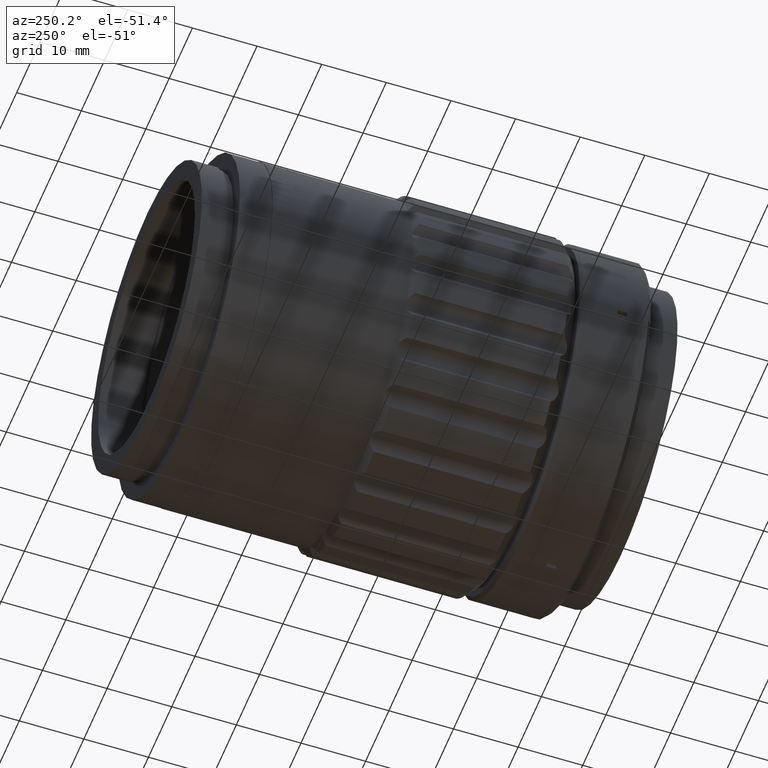
[diagram: clean part render]
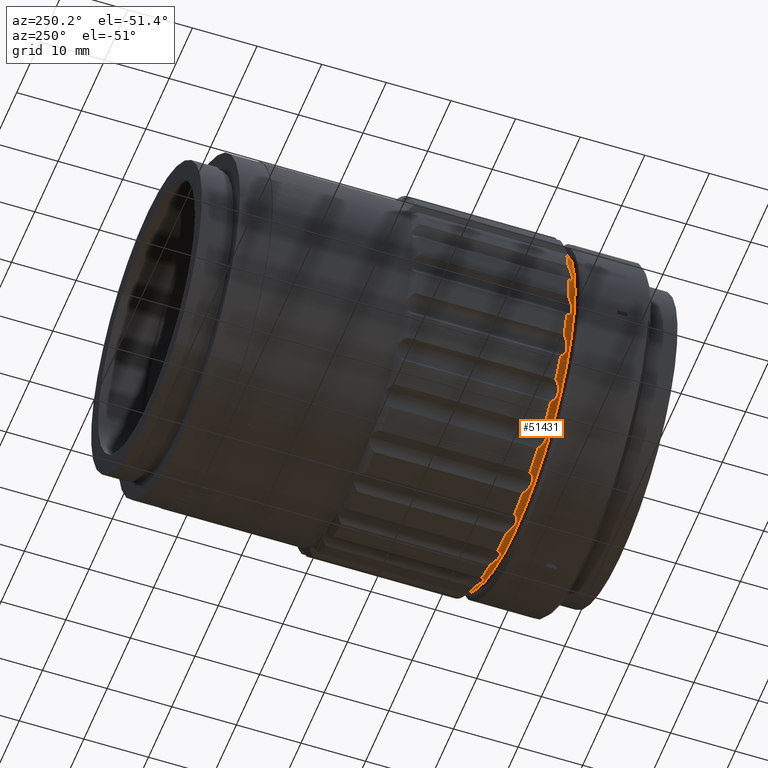
[diagram: same view with one face highlighted and labeled with its STEP entity id]
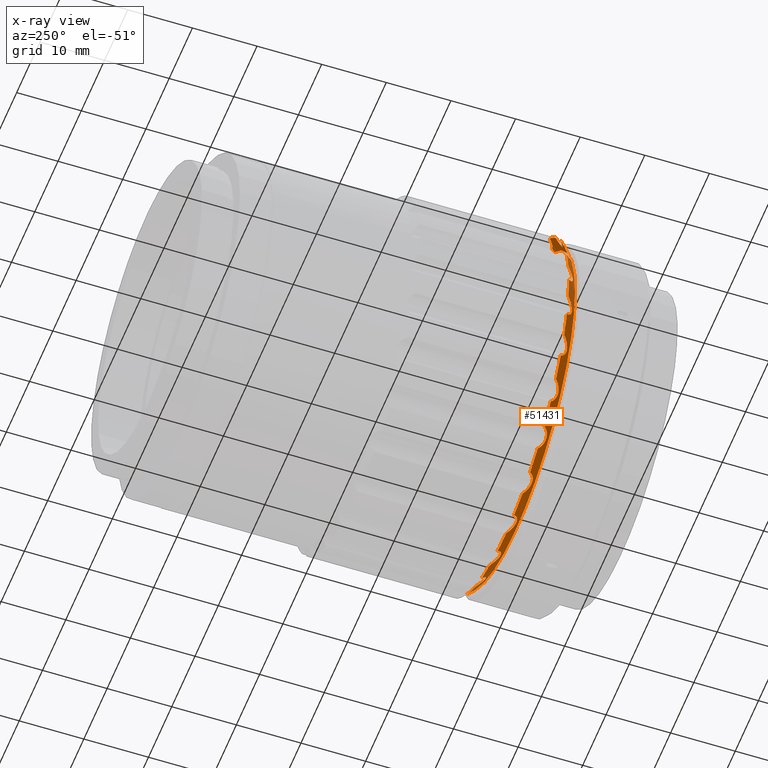
[diagram: x-ray of the same camera — body ghosted, the highlighted face saturated]
A machine part, auxiliary view. The second image highlights one B-rep face of the part: STEP entity #51431.
The next image is the same camera in x-ray: the body ghosted, the highlighted face saturated — about 1% of this face is hidden behind the body in this view.
In plain terms, the highlighted conical surface has half-angle 45 deg.
Its self-contained STEP definition (entity closure, byte-faithful):
#68 = VERTEX_POINT ( 'NONE', #10202 ) ;
#84 = CARTESIAN_POINT ( 'NONE',  ( 20.29177065929341600, -27.34280492395363600, 17.99553708797273900 ) ) ;
#85 = ORIENTED_EDGE ( 'NONE', *, *, #19876, .F. ) ;
#781 = DIRECTION ( 'NONE',  ( 0.0000000000000000000, 0.0000000000000000000, 1.000000000000000000 ) ) ;
#817 = CARTESIAN_POINT ( 'NONE',  ( 5.496128974197956700, -27.46488145372640200, 26.43456949145856400 ) ) ;
#994 = B_SPLINE_CURVE_WITH_KNOTS ( 'NONE', 3,
 ( #76014, #15678, #16257, #15131, #36127, #49241, #62928, #81594, #22678, #9551, #22103, #15971, #8991, #82735 ),
 .UNSPECIFIED., .F., .F.,
 ( 4, 2, 2, 2, 2, 2, 4 ),
 ( 2.979895395335681900E-007, 0.0005735843058146334100, 0.001146870622089733400, 0.001433513780227278200, 0.001720156938364823400, 0.002006800096502368200, 0.002293443254639913400 ),
 .UNSPECIFIED. ) ;
#1081 = CARTESIAN_POINT ( 'NONE',  ( 17.97463840854025800, -27.69496217823254400, -19.83771845072895700 ) ) ;
#1366 = CARTESIAN_POINT ( 'NONE',  ( 18.42558895472554800, -28.21457821189759200, -18.69751705756829100 ) ) ;
#1429 = VERTEX_POINT ( 'NONE', #45675 ) ;
#1537 = CARTESIAN_POINT ( 'NONE',  ( 12.15061308000440700, -27.46505317721099700, -24.11114494454793800 ) ) ;
#1595 = EDGE_CURVE ( 'NONE', #82577, #78057, #76511, .T. ) ;
#2214 = CARTESIAN_POINT ( 'NONE',  ( 18.17598315811139300, -28.09950435885614800, -19.09865240405550700 ) ) ;
#2243 = VERTEX_POINT ( 'NONE', #79891 ) ;
#2279 = CARTESIAN_POINT ( 'NONE',  ( 22.73316684934169300, -28.21457821189759200, -13.12499999999982200 ) ) ;
#2628 = CARTESIAN_POINT ( 'NONE',  ( 5.396722380791890000, -27.21457821189765600, -26.71025809580768500 ) ) ;
#2992 = B_SPLINE_CURVE_WITH_KNOTS ( 'NONE', 3,
 ( #35799, #62893, #43103, #56488, #63169, #22922, #69291, #23229, #29373, #29957, #76572, #43404 ),
 .UNSPECIFIED., .F., .F.,
 ( 4, 2, 2, 2, 2, 4 ),
 ( 0.002293443254639917300, 0.002866010891116032100, 0.003152294709354088400, 0.003438578527592144300, 0.004011146164068256500, 0.004583713800544368300 ),
 .UNSPECIFIED. ) ;
#3066 = B_SPLINE_CURVE_WITH_KNOTS ( 'NONE', 3,
 ( #70979, #84691, #77414, #31658, #77977, #44784, #65137, #45067, #57334, #84138, #11513, #24352 ),
 .UNSPECIFIED., .F., .F.,
 ( 4, 2, 2, 2, 2, 4 ),
 ( 0.002293443254639916400, 0.002866010891116025200, 0.003152294709354081000, 0.003438578527592136900, 0.004011146164068253100, 0.004583713800544370100 ),
 .UNSPECIFIED. ) ;
#3070 = CARTESIAN_POINT ( 'NONE',  ( 27.19690265486727700, -27.21457821189765600, -1.700289969879626300 ) ) ;
#3079 = CARTESIAN_POINT ( 'NONE',  ( 22.70306361842767400, -27.21457821189765600, -15.07094563514930000 ) ) ;
#3089 = CARTESIAN_POINT ( 'NONE',  ( 25.48595755899750200, -27.69403601927517800, 8.193788467767813400 ) ) ;
#3376 = CARTESIAN_POINT ( 'NONE',  ( 13.12499999999974200, -28.21457821189758900, 22.73316684934174200 ) ) ;
#3632 = CIRCLE ( 'NONE', #15533, 27.25000000000000000 ) ;
#4050 = CARTESIAN_POINT ( 'NONE',  ( 22.49960830672927200, -28.09926723534072600, 13.74427288286548800 ) ) ;
#4256 = CARTESIAN_POINT ( 'NONE',  ( 23.22371866839297600, -28.06476916104587400, -12.55448674485722000 ) ) ;
#4336 = CARTESIAN_POINT ( 'NONE',  ( 17.99091246640373100, -27.80261297679606600, 19.67757964108798400 ) ) ;
#4344 = CARTESIAN_POINT ( 'NONE',  ( 22.57841341308863300, -27.46488145372640900, 14.80571327722609400 ) ) ;
#4705 = CARTESIAN_POINT ( 'NONE',  ( 25.35555294008817700, -28.21457821189758900, -6.793999933940936500 ) ) ;
#4797 = VERTEX_POINT ( 'NONE', #79356 ) ;
#4816 = CARTESIAN_POINT ( 'NONE',  ( 14.94273114514007800, -27.34283140253415200, -22.63423652695932700 ) ) ;
#4913 = CARTESIAN_POINT ( 'NONE',  ( 3.214687295059312000E-015, -28.21457821189758900, -26.25000000000006800 ) ) ;
#5098 = CARTESIAN_POINT ( 'NONE',  ( 23.66347315926447700, -27.80261297679608000, -12.28495461717019500 ) ) ;
#5170 = CARTESIAN_POINT ( 'NONE',  ( 18.56155300614669600, -28.21457821189758900, 18.56155300614714700 ) ) ;
#5191 = B_SPLINE_CURVE_WITH_KNOTS ( 'NONE', 3,
 ( #16873, #44325, #30615, #50716, #4336, #52717, #11605, #39319, #12176, #24727, #6057, #85936, #38729, #5170 ),
 .UNSPECIFIED., .F., .F.,
 ( 4, 2, 2, 2, 2, 2, 4 ),
 ( 2.979895395330392700E-007, 0.0005735843058146303800, 0.001146870622089727700, 0.001433513780227274900, 0.001720156938364822100, 0.002006800096502369500, 0.002293443254639916400 ),
 .UNSPECIFIED. ) ;
#5319 = VERTEX_POINT ( 'NONE', #37632 ) ;
#5404 = CARTESIAN_POINT ( 'NONE',  ( 18.02882772684167600, -27.21457821189765600, -20.43340086221245500 ) ) ;
#5472 = CARTESIAN_POINT ( 'NONE',  ( 26.25711993987787800, -28.20691269605203300, 0.1939677701091092100 ) ) ;
#5670 = CARTESIAN_POINT ( 'NONE',  ( 13.83508696474259900, -28.06476916104587400, -22.48436378671787800 ) ) ;
#5927 = CARTESIAN_POINT ( 'NONE',  ( 19.43000910378004800, -27.94445593749854600, 18.04983398450367800 ) ) ;
#6019 = VERTEX_POINT ( 'NONE', #5404 ) ;
#6057 = CARTESIAN_POINT ( 'NONE',  ( 18.31483266324946200, -28.17713089429709700, 18.85751212869132900 ) ) ;
#6265 = CARTESIAN_POINT ( 'NONE',  ( 25.85179847188828000, -27.94445593749853900, 5.916610212781822800 ) ) ;
#6364 = CARTESIAN_POINT ( 'NONE',  ( 14.34841600653548200, -27.80398875942939800, 22.47063614641592400 ) ) ;
#6385 = EDGE_CURVE ( 'NONE', #36840, #35948, #42842, .T. ) ;
#6961 = EDGE_CURVE ( 'NONE', #68, #6019, #23582, .T. ) ;
#7249 = CARTESIAN_POINT ( 'NONE',  ( 5.741797412623757400, -27.80261297679608000, 26.03674008737554900 ) ) ;
#7326 = CIRCLE ( 'NONE', #61600, 27.25000000000000000 ) ;
#7836 = ORIENTED_EDGE ( 'NONE', *, *, #21660, .F. ) ;
#8282 = CARTESIAN_POINT ( 'NONE',  ( 8.575398443852604300, -27.34283140253415600, -25.73045702593426400 ) ) ;
#8306 = VERTEX_POINT ( 'NONE', #18603 ) ;
#8568 = CARTESIAN_POINT ( 'NONE',  ( 25.29891584729710600, -28.06509218753952000, -7.543477619176629300 ) ) ;
#8715 = EDGE_CURVE ( 'NONE', #17019, #28476, #72969, .T. ) ;
#8840 = ORIENTED_EDGE ( 'NONE', *, *, #49540, .F. ) ;
#8991 = CARTESIAN_POINT ( 'NONE',  ( 0.09626177787805270700, -28.21457821189759200, -26.25000000000007500 ) ) ;
#9032 = CARTESIAN_POINT ( 'NONE',  ( 15.07094563514922000, -27.21457821189765600, 22.70306361842772700 ) ) ;
#9489 = CARTESIAN_POINT ( 'NONE',  ( 26.63434974526077800, -27.80398875942940500, -1.190774692519094300 ) ) ;
#9491 = CARTESIAN_POINT ( 'NONE',  ( 12.40542373931072200, -27.94395996729931000, 23.44042607016186600 ) ) ;
#9551 = CARTESIAN_POINT ( 'NONE',  ( 0.4754242997173781000, -28.15530689563528100, -26.30512339967832200 ) ) ;
#9613 = EDGE_CURVE ( 'NONE', #51441, #34334, #22855, .T. ) ;
#9909 = CARTESIAN_POINT ( 'NONE',  ( 22.73316684934141900, -28.21457821189758900, 13.12500000000030000 ) ) ;
#10182 = CARTESIAN_POINT ( 'NONE',  ( 22.47081936244052600, -27.80261297679607000, 14.35069158910920200 ) ) ;
#10188 = ORIENTED_EDGE ( 'NONE', *, *, #8715, .F. ) ;
#10202 = CARTESIAN_POINT ( 'NONE',  ( 18.56155300614708300, -28.21457821189759200, -18.56155300614676000 ) ) ;
#10455 = DIRECTION ( 'NONE',  ( 0.0000000000000000000, 1.000000000000000000, 0.0000000000000000000 ) ) ;
#10825 = CARTESIAN_POINT ( 'NONE',  ( 0.0000000000000000000, -27.21457821189765600, 0.0000000000000000000 ) ) ;
#10828 = VERTEX_POINT ( 'NONE', #26426 ) ;
#11252 = CARTESIAN_POINT ( 'NONE',  ( 23.15269362647170600, -28.09926723534074700, -12.61309592739423400 ) ) ;
#11378 = DIRECTION ( 'NONE',  ( 0.0000000000000000000, 0.0000000000000000000, 1.000000000000000000 ) ) ;
#11404 = CARTESIAN_POINT ( 'NONE',  ( 26.03674008737553100, -27.80261297679607700, -5.741797412623846200 ) ) ;
#11461 = EDGE_CURVE ( 'NONE', #6019, #2243, #23806, .T. ) ;
#11513 = CARTESIAN_POINT ( 'NONE',  ( 1.623682329469386700, -27.34280492395364700, 27.07321494146812300 ) ) ;
#11605 = CARTESIAN_POINT ( 'NONE',  ( 18.07461255162277800, -27.98722358619830800, 19.34851460391178400 ) ) ;
#11759 = B_SPLINE_CURVE_WITH_KNOTS ( 'NONE', 3,
 ( #79248, #39359, #817, #46352, #7249, #60601, #73122, #79545, #20916, #20057, #20635, #47502, #53910, #67308 ),
 .UNSPECIFIED., .F., .F.,
 ( 4, 2, 2, 2, 2, 2, 4 ),
 ( 2.979895395331365200E-007, 0.0005735843058146333000, 0.001146870622089733600, 0.001433513780227279500, 0.001720156938364825500, 0.002006800096502371200, 0.002293443254639917300 ),
 .UNSPECIFIED. ) ;
#12123 = VERTEX_POINT ( 'NONE', #46863 ) ;
#12176 = CARTESIAN_POINT ( 'NONE',  ( 18.17567316168613400, -28.09926723534073600, 19.09927527825271200 ) ) ;
#12623 = CARTESIAN_POINT ( 'NONE',  ( 18.56155300614669600, -28.21457821189758900, 18.56155300614714700 ) ) ;
#12666 = CARTESIAN_POINT ( 'NONE',  ( 14.80571327722601900, -27.46488145372640600, -22.57841341308868600 ) ) ;
#12743 = CARTESIAN_POINT ( 'NONE',  ( 19.83900774582160100, -27.69403601927518500, -17.97459245198000800 ) ) ;
#12776 = CARTESIAN_POINT ( 'NONE',  ( 13.12499999999974200, -28.21457821189758900, 22.73316684934174200 ) ) ;
#14054 = CARTESIAN_POINT ( 'NONE',  ( 6.428378196693362400, -28.18336728292411300, -25.48350592457158800 ) ) ;
#14217 = CARTESIAN_POINT ( 'NONE',  ( 18.07484719242459500, -27.98758608644782000, -19.34779952012606000 ) ) ;
#14708 = B_SPLINE_CURVE_WITH_KNOTS ( 'NONE', 3,
 ( #63807, #64673, #4344, #51287, #10182, #43468, #64115, #16881, #4050, #84237, #36731, #83962, #57723, #30317 ),
 .UNSPECIFIED., .F., .F.,
 ( 4, 2, 2, 2, 2, 2, 4 ),
 ( 2.979895395317101100E-007, 0.0005735843058146297300, 0.001146870622089727700, 0.001433513780227274300, 0.001720156938364820800, 0.002006800096502367300, 0.002293443254639913800 ),
 .UNSPECIFIED. ) ;
#14906 = CARTESIAN_POINT ( 'NONE',  ( 6.608269585698109500, -28.21457821189758200, -25.40531923690980100 ) ) ;
#15013 = EDGE_CURVE ( 'NONE', #69228, #42284, #7326, .T. ) ;
#15124 = ORIENTED_EDGE ( 'NONE', *, *, #36326, .F. ) ;
#15131 = CARTESIAN_POINT ( 'NONE',  ( 1.318340697223064700, -27.69403601927518500, -26.73825312094251700 ) ) ;
#15354 = CARTESIAN_POINT ( 'NONE',  ( 26.25000000000006800, -28.21457821189758900, 2.749541448812025800E-013 ) ) ;
#15498 = CARTESIAN_POINT ( 'NONE',  ( 12.80495319060172900, -28.18336728292409500, -22.95138981050813200 ) ) ;
#15533 = AXIS2_PLACEMENT_3D ( 'NONE', #18619, #78689, #39080 ) ;
#15617 = CARTESIAN_POINT ( 'NONE',  ( 26.27896322336021800, -28.18336728292411300, -0.3862801479223057500 ) ) ;
#15678 = CARTESIAN_POINT ( 'NONE',  ( 1.623666510132358600, -27.34283140253416300, -27.07318940018251000 ) ) ;
#15971 = CARTESIAN_POINT ( 'NONE',  ( 0.1939677701088359000, -28.20691269605202600, -26.25711993987788900 ) ) ;
#16074 = VERTEX_POINT ( 'NONE', #78745 ) ;
#16087 = CARTESIAN_POINT ( 'NONE',  ( 0.0000000000000000000, -27.21457821189765600, 0.0000000000000000000 ) ) ;
#16206 = DIRECTION ( 'NONE',  ( 0.0000000000000000000, 1.000000000000000000, 0.0000000000000000000 ) ) ;
#16257 = CARTESIAN_POINT ( 'NONE',  ( 1.532917112681723400, -27.46488145372640900, -26.95633623149513600 ) ) ;
#16493 = CARTESIAN_POINT ( 'NONE',  ( 12.55448674485714000, -28.06476916104587000, 23.22371866839302600 ) ) ;
#16855 = ORIENTED_EDGE ( 'NONE', *, *, #23459, .F. ) ;
#16873 = CARTESIAN_POINT ( 'NONE',  ( 18.02882772684125000, -27.21457821189765600, 20.43340086221282800 ) ) ;
#16876 = DIRECTION ( 'NONE',  ( 0.0000000000000000000, 1.000000000000000000, 0.0000000000000000000 ) ) ;
#16881 = CARTESIAN_POINT ( 'NONE',  ( 22.48436378671781500, -28.06476916104585900, 13.83508696474267600 ) ) ;
#17019 = VERTEX_POINT ( 'NONE', #9032 ) ;
#17102 = CARTESIAN_POINT ( 'NONE',  ( 25.31222772085741100, -28.20691269605202900, 6.983201188597655900 ) ) ;
#17266 = ORIENTED_EDGE ( 'NONE', *, *, #86395, .F. ) ;
#17660 = CARTESIAN_POINT ( 'NONE',  ( 22.95518548577694400, -28.17713089429709700, -12.81008659143822600 ) ) ;
#18212 = CARTESIAN_POINT ( 'NONE',  ( 13.47473048354753400, -28.17713089429708600, -22.57145315575239400 ) ) ;
#18222 = CARTESIAN_POINT ( 'NONE',  ( 25.35555294008803500, -28.21457821189758500, 6.793999933941468500 ) ) ;
#18286 = CARTESIAN_POINT ( 'NONE',  ( 0.0000000000000000000, -28.71457821189759200, 0.0000000000000000000 ) ) ;
#18603 = CARTESIAN_POINT ( 'NONE',  ( 3.245314017740490500E-015, -28.71457821189759200, -25.75000000000007100 ) ) ;
#18619 = CARTESIAN_POINT ( 'NONE',  ( 0.0000000000000000000, -27.21457821189765600, 0.0000000000000000000 ) ) ;
#18675 = ORIENTED_EDGE ( 'NONE', *, *, #1595, .F. ) ;
#18824 = VERTEX_POINT ( 'NONE', #22955 ) ;
#19140 = CARTESIAN_POINT ( 'NONE',  ( 19.18304937321613900, -28.06476916104587000, -18.13744367214442800 ) ) ;
#19155 = CARTESIAN_POINT ( 'NONE',  ( 26.63564620627934000, -27.80261297679608000, 1.192653796823947200 ) ) ;
#19169 = EDGE_CURVE ( 'NONE', #78057, #43040, #68611, .T. ) ;
#19178 = CARTESIAN_POINT ( 'NONE',  ( 14.94275761573015200, -27.34280492395364300, 22.63425073669332500 ) ) ;
#19432 = CARTESIAN_POINT ( 'NONE',  ( 18.70374348949192000, -28.20691269605203300, -18.42943163834040700 ) ) ;
#19717 = CARTESIAN_POINT ( 'NONE',  ( 19.09927527825264400, -28.09926723534073600, -18.17567316168619800 ) ) ;
#19856 = VERTEX_POINT ( 'NONE', #64020 ) ;
#19876 = EDGE_CURVE ( 'NONE', #51373, #69228, #59045, .T. ) ;
#19923 = AXIS2_PLACEMENT_3D ( 'NONE', #74022, #27428, #34131 ) ;
#20057 = CARTESIAN_POINT ( 'NONE',  ( 6.349042310065970100, -28.15530689563527700, 25.53184691874165000 ) ) ;
#20635 = CARTESIAN_POINT ( 'NONE',  ( 6.432354288089341800, -28.17713089429709300, 25.48850088724460200 ) ) ;
#20916 = CARTESIAN_POINT ( 'NONE',  ( 6.190957049776832500, -28.09926723534073300, 25.62829416568202500 ) ) ;
#21023 = CARTESIAN_POINT ( 'NONE',  ( 6.793999933941379700, -28.21457821189758900, -25.35555294008806000 ) ) ;
#21065 = CARTESIAN_POINT ( 'NONE',  ( 12.40594440328848700, -27.94445593749853500, -23.43958839450117900 ) ) ;
#21105 = CARTESIAN_POINT ( 'NONE',  ( 8.193788467767724600, -27.69403601927517800, -25.48595755899753000 ) ) ;
#21175 = DIRECTION ( 'NONE',  ( 0.0000000000000000000, 0.0000000000000000000, 1.000000000000000000 ) ) ;
#21185 = CARTESIAN_POINT ( 'NONE',  ( 18.13776500237566600, -28.06509218753952000, -19.18230117473488900 ) ) ;
#21267 = CARTESIAN_POINT ( 'NONE',  ( 25.83012324300438300, -27.21457821189765600, -8.681430368965969500 ) ) ;
#21484 = B_SPLINE_CURVE_WITH_KNOTS ( 'NONE', 3,
 ( #76553, #50059, #50644, #56470, #82978, #36644, #49481, #43087, #76852, #83577, #70150, #3079 ),
 .UNSPECIFIED., .F., .F.,
 ( 4, 2, 2, 2, 2, 4 ),
 ( 0.002293443254639917300, 0.002866010891116029500, 0.003152294709354087600, 0.003438578527592144700, 0.004011146164068255700, 0.004583713800544366600 ),
 .UNSPECIFIED. ) ;
#21571 = VERTEX_POINT ( 'NONE', #2279 ) ;
#21660 = EDGE_CURVE ( 'NONE', #43040, #71437, #994, .T. ) ;
#21677 = CARTESIAN_POINT ( 'NONE',  ( 6.793999933941379700, -28.21457821189758900, -25.35555294008806000 ) ) ;
#21735 = AXIS2_PLACEMENT_3D ( 'NONE', #44997, #38860, #58952 ) ;
#22103 = CARTESIAN_POINT ( 'NONE',  ( 0.3837323300243211100, -28.17713089429710000, -26.28481707498578900 ) ) ;
#22280 = CIRCLE ( 'NONE', #19923, 27.25000000000000000 ) ;
#22305 = AXIS2_PLACEMENT_3D ( 'NONE', #48431, #35303, #42029 ) ;
#22326 = CARTESIAN_POINT ( 'NONE',  ( 26.50225120553317400, -27.94445593749853900, -0.9759311860653224800 ) ) ;
#22450 = CARTESIAN_POINT ( 'NONE',  ( 5.647634260270850200, -27.69496217823255100, -26.16728733572468700 ) ) ;
#22678 = CARTESIAN_POINT ( 'NONE',  ( 0.6530853197421552200, -28.09926723534074000, -26.35736881025967900 ) ) ;
#22855 = CIRCLE ( 'NONE', #83834, 27.25000000000000000 ) ;
#22922 = CARTESIAN_POINT ( 'NONE',  ( 7.718262295545124600, -27.98758608644783100, 25.32717659822460000 ) ) ;
#22924 = ORIENTED_EDGE ( 'NONE', *, *, #76867, .F. ) ;
#22955 = CARTESIAN_POINT ( 'NONE',  ( 20.43340086221277100, -27.21457821189765600, -18.02882772684132100 ) ) ;
#23002 = VERTEX_POINT ( 'NONE', #21267 ) ;
#23205 = CARTESIAN_POINT ( 'NONE',  ( 12.81008659143814500, -28.17713089429709700, 22.95518548577699700 ) ) ;
#23229 = CARTESIAN_POINT ( 'NONE',  ( 8.043676996790502200, -27.80398875942939800, 25.41861111651303400 ) ) ;
#23233 = CARTESIAN_POINT ( 'NONE',  ( 3.153465507804443500E-015, -28.71457821189759200, -25.75000000000007100 ) ) ;
#23297 = ORIENTED_EDGE ( 'NONE', *, *, #6961, .F. ) ;
#23395 = CARTESIAN_POINT ( 'NONE',  ( 22.82930795209918900, -28.21457821189758200, 12.95847872532815100 ) ) ;
#23459 = EDGE_CURVE ( 'NONE', #4797, #1429, #72442, .T. ) ;
#23515 = CARTESIAN_POINT ( 'NONE',  ( 25.33063855865777100, -28.21457821189759600, 6.886981671278380900 ) ) ;
#23572 = CARTESIAN_POINT ( 'NONE',  ( 0.0000000000000000000, -27.21457821189765600, 0.0000000000000000000 ) ) ;
#23582 = B_SPLINE_CURVE_WITH_KNOTS ( 'NONE', 3,
 ( #28780, #1366, #27934, #2214, #21185, #14217, #61730, #42213, #1081, #60881, #67845, #68136 ),
 .UNSPECIFIED., .F., .F.,
 ( 4, 2, 2, 2, 2, 4 ),
 ( 0.002293443254639912900, 0.002866010891116018200, 0.003152294709354073700, 0.003438578527592129100, 0.004011146164068246100, 0.004583713800544364000 ),
 .UNSPECIFIED. ) ;
#23762 = EDGE_CURVE ( 'NONE', #37376, #23002, #61361, .T. ) ;
#23806 = CIRCLE ( 'NONE', #40312, 27.25000000000000000 ) ;
#23884 = DIRECTION ( 'NONE',  ( 0.0000000000000000000, 0.0000000000000000000, 1.000000000000000000 ) ) ;
#24352 = CARTESIAN_POINT ( 'NONE',  ( 1.700289969879911200, -27.21457821189765600, 27.19690265486725900 ) ) ;
#24651 = CARTESIAN_POINT ( 'NONE',  ( 22.83631678320371700, -28.20691269605203300, -12.96057895350906000 ) ) ;
#24727 = CARTESIAN_POINT ( 'NONE',  ( 18.26435538959021800, -28.15530689563528100, 18.93670688213272200 ) ) ;
#25374 = CARTESIAN_POINT ( 'NONE',  ( 25.83012324300420200, -27.21457821189765600, 8.681430368966511300 ) ) ;
#25873 = CARTESIAN_POINT ( 'NONE',  ( 26.35736881025967200, -28.09926723534074000, 0.6530853197424288900 ) ) ;
#25897 = CARTESIAN_POINT ( 'NONE',  ( 15.07094563514922000, -27.21457821189765600, 22.70306361842772700 ) ) ;
#26210 = ORIENTED_EDGE ( 'NONE', *, *, #54009, .F. ) ;
#26332 = CARTESIAN_POINT ( 'NONE',  ( 18.69751705756823100, -28.21457821189758900, 18.42558895472561900 ) ) ;
#26426 = CARTESIAN_POINT ( 'NONE',  ( 1.055269961422458500E-020, -28.21457821189758900, 26.25000000000006800 ) ) ;
#26454 = CARTESIAN_POINT ( 'NONE',  ( 18.93670688213265100, -28.15530689563527700, -18.26435538959027500 ) ) ;
#26470 = CARTESIAN_POINT ( 'NONE',  ( 26.25000000000007100, -28.21457821189759600, 0.09626177787832455900 ) ) ;
#26777 = CARTESIAN_POINT ( 'NONE',  ( 14.01042454763560300, -27.98758608644783100, 22.46654070602546600 ) ) ;
#27193 = ORIENTED_EDGE ( 'NONE', *, *, #63809, .F. ) ;
#27428 = DIRECTION ( 'NONE',  ( 0.0000000000000000000, 1.000000000000000000, 0.0000000000000000000 ) ) ;
#27562 = CARTESIAN_POINT ( 'NONE',  ( 8.457497431597992900, -27.46488145372640200, -25.64107320480722800 ) ) ;
#27814 = CARTESIAN_POINT ( 'NONE',  ( 12.55499077404280300, -28.06509218753951300, -23.22307913054034500 ) ) ;
#27934 = CARTESIAN_POINT ( 'NONE',  ( 18.30889178575625600, -28.18336728292410600, -18.85517440982354000 ) ) ;
#28476 = VERTEX_POINT ( 'NONE', #65316 ) ;
#28477 = EDGE_CURVE ( 'NONE', #52840, #78821, #22280, .T. ) ;
#28620 = CARTESIAN_POINT ( 'NONE',  ( 5.496167468345633200, -27.46505317721100400, -26.43438767811490600 ) ) ;
#28780 = CARTESIAN_POINT ( 'NONE',  ( 18.56155300614708300, -28.21457821189759200, -18.56155300614676000 ) ) ;
#29175 = CARTESIAN_POINT ( 'NONE',  ( 5.438706943282602100, -27.34280492395364000, -26.57095742270220700 ) ) ;
#29349 = CARTESIAN_POINT ( 'NONE',  ( 26.35714757226545400, -28.09950435885614800, -0.6524256805993125000 ) ) ;
#29373 = CARTESIAN_POINT ( 'NONE',  ( 8.192648927184306400, -27.69496217823255100, 25.48535271099988000 ) ) ;
#29423 = DIRECTION ( 'NONE',  ( 0.0000000000000000000, 0.0000000000000000000, 1.000000000000000000 ) ) ;
#29467 = CARTESIAN_POINT ( 'NONE',  ( 5.743276939199267500, -27.80398875942940500, -26.03500145421310900 ) ) ;
#29767 = CARTESIAN_POINT ( 'NONE',  ( 5.979377078098478300, -27.98758608644784100, -25.79310948796984700 ) ) ;
#29947 = CARTESIAN_POINT ( 'NONE',  ( 25.32733093522229200, -27.98722358619830100, 7.718998896670393100 ) ) ;
#29957 = CARTESIAN_POINT ( 'NONE',  ( 8.457373188016381600, -27.46505317721100400, 25.64093499690671200 ) ) ;
#30116 = CARTESIAN_POINT ( 'NONE',  ( 24.11114494454789200, -27.46505317721099700, 12.15061308000449000 ) ) ;
#30154 = ORIENTED_EDGE ( 'NONE', *, *, #35548, .F. ) ;
#30317 = CARTESIAN_POINT ( 'NONE',  ( 22.73316684934141900, -28.21457821189758900, 13.12500000000030000 ) ) ;
#30415 = CARTESIAN_POINT ( 'NONE',  ( 23.43958839450113600, -27.94445593749854200, 12.40594440328856700 ) ) ;
#30615 = CARTESIAN_POINT ( 'NONE',  ( 17.97707205986043600, -27.46488145372639900, 20.14494423060919800 ) ) ;
#30958 = LINE ( 'NONE', #23233, #33035 ) ;
#30987 = CARTESIAN_POINT ( 'NONE',  ( 0.0000000000000000000, -27.21457821189765600, 0.0000000000000000000 ) ) ;
#31050 = CARTESIAN_POINT ( 'NONE',  ( 13.12500000000022200, -28.21457821189758900, -22.73316684934146900 ) ) ;
#31658 = CARTESIAN_POINT ( 'NONE',  ( 0.6524256805995876100, -28.09950435885614800, 26.35714757226545000 ) ) ;
#31828 = CARTESIAN_POINT ( 'NONE',  ( 26.71025809580777700, -27.21457821189765600, -5.396722380791422000 ) ) ;
#31943 = CARTESIAN_POINT ( 'NONE',  ( 13.29654098636880400, -28.20691269605203300, -22.64234901309466300 ) ) ;
#31956 = CARTESIAN_POINT ( 'NONE',  ( 22.73316684934169300, -28.21457821189759200, -13.12499999999982200 ) ) ;
#32512 = CARTESIAN_POINT ( 'NONE',  ( 26.57095742270219300, -27.34280492395364000, 5.438706943282693600 ) ) ;
#32566 = DIRECTION ( 'NONE',  ( 0.0000000000000000000, -1.000000000000000000, 0.0000000000000000000 ) ) ;
#33035 = VECTOR ( 'NONE', #75702, 1000.000000000000100 ) ;
#33103 = EDGE_CURVE ( 'NONE', #68963, #10828, #50185, .T. ) ;
#33104 = CARTESIAN_POINT ( 'NONE',  ( 25.79310948796982600, -27.98758608644784100, 5.979377078098568000 ) ) ;
#33578 = CIRCLE ( 'NONE', #66537, 27.25000000000000000 ) ;
#33984 = CARTESIAN_POINT ( 'NONE',  ( 25.41861111651300200, -27.80398875942939800, -8.043676996790594600 ) ) ;
#34131 = DIRECTION ( 'NONE',  ( 0.0000000000000000000, 0.0000000000000000000, 1.000000000000000000 ) ) ;
#34334 = VERTEX_POINT ( 'NONE', #25374 ) ;
#34550 = CARTESIAN_POINT ( 'NONE',  ( 7.718998896670303400, -27.98722358619830100, -25.32733093522231700 ) ) ;
#34840 = CARTESIAN_POINT ( 'NONE',  ( 25.34661931656188100, -27.94445593749853900, -7.801964487384656100 ) ) ;
#34926 = B_SPLINE_CURVE_WITH_KNOTS ( 'NONE', 3,
 ( #45088, #37805, #84991, #51202, #5098, #84712, #37518, #4256, #11252, #71843, #17660, #24651, #51773, #31956 ),
 .UNSPECIFIED., .F., .F.,
 ( 4, 2, 2, 2, 2, 2, 4 ),
 ( 2.979895395329111000E-007, 0.0005735843058146299400, 0.001146870622089727100, 0.001433513780227274700, 0.001720156938364822300, 0.002006800096502369900, 0.002293443254639917300 ),
 .UNSPECIFIED. ) ;
#35303 = DIRECTION ( 'NONE',  ( 0.0000000000000000000, 1.000000000000000000, 0.0000000000000000000 ) ) ;
#35548 = EDGE_CURVE ( 'NONE', #34334, #51373, #53815, .T. ) ;
#35776 = CARTESIAN_POINT ( 'NONE',  ( 12.15062295426900000, -27.46488145372640900, 24.11133052577068300 ) ) ;
#35799 = CARTESIAN_POINT ( 'NONE',  ( 6.793999933940849400, -28.21457821189758900, 25.35555294008819900 ) ) ;
#35948 = VERTEX_POINT ( 'NONE', #81174 ) ;
#35951 = DIRECTION ( 'NONE',  ( 0.0000000000000000000, 0.0000000000000000000, 1.000000000000000000 ) ) ;
#36127 = CARTESIAN_POINT ( 'NONE',  ( 1.192653796823668300, -27.80261297679607300, -26.63564620627935400 ) ) ;
#36185 = CARTESIAN_POINT ( 'NONE',  ( 6.116614672562172400, -28.06509218753952000, -25.68124262155232500 ) ) ;
#36326 = EDGE_CURVE ( 'NONE', #19856, #61619, #14708, .T. ) ;
#36442 = CIRCLE ( 'NONE', #52604, 27.25000000000000000 ) ;
#36532 = CARTESIAN_POINT ( 'NONE',  ( 24.25793306616236900, -27.34280492395364300, 12.13045732573795700 ) ) ;
#36644 = CARTESIAN_POINT ( 'NONE',  ( 22.46654070602542000, -27.98758608644783800, -14.01042454763568100 ) ) ;
#36731 = CARTESIAN_POINT ( 'NONE',  ( 22.57145315575235100, -28.17713089429708600, 13.47473048354761200 ) ) ;
#36840 = VERTEX_POINT ( 'NONE', #50040 ) ;
#37108 = ORIENTED_EDGE ( 'NONE', *, *, #49883, .F. ) ;
#37376 = VERTEX_POINT ( 'NONE', #63904 ) ;
#37518 = CARTESIAN_POINT ( 'NONE',  ( 23.36728391745860000, -27.98722358619830400, -12.45097098984443600 ) ) ;
#37632 = CARTESIAN_POINT ( 'NONE',  ( 27.19690265486727700, -27.21457821189765600, -1.700289969879626300 ) ) ;
#37667 = ORIENTED_EDGE ( 'NONE', *, *, #79659, .F. ) ;
#37681 = ORIENTED_EDGE ( 'NONE', *, *, #44406, .F. ) ;
#37789 = EDGE_CURVE ( 'NONE', #16074, #12123, #2992, .T. ) ;
#37805 = CARTESIAN_POINT ( 'NONE',  ( 24.25790303709192100, -27.34283140253415200, -12.13045825504238300 ) ) ;
#38070 = CARTESIAN_POINT ( 'NONE',  ( 14.51084309510950400, -27.69403601927518800, -22.49683610694311800 ) ) ;
#38694 = CARTESIAN_POINT ( 'NONE',  ( 26.71025809580766700, -27.21457821189765600, 5.396722380791983300 ) ) ;
#38729 = CARTESIAN_POINT ( 'NONE',  ( 18.49348565024005700, -28.21457821189759200, 18.62962036205379200 ) ) ;
#38860 = DIRECTION ( 'NONE',  ( 0.0000000000000000000, 1.000000000000000000, 0.0000000000000000000 ) ) ;
#38927 = ORIENTED_EDGE ( 'NONE', *, *, #74317, .F. ) ;
#38938 = EDGE_CURVE ( 'NONE', #60959, #5319, #43218, .T. ) ;
#39033 = CARTESIAN_POINT ( 'NONE',  ( 26.25000000000006800, -28.21457821189758900, 2.749541448812025800E-013 ) ) ;
#39080 = DIRECTION ( 'NONE',  ( 0.0000000000000000000, 0.0000000000000000000, 1.000000000000000000 ) ) ;
#39232 = CARTESIAN_POINT ( 'NONE',  ( 14.35069158910911600, -27.80261297679606600, -22.47081936244057200 ) ) ;
#39287 = DIRECTION ( 'NONE',  ( 0.0000000000000000000, 1.000000000000000000, 0.0000000000000000000 ) ) ;
#39319 = CARTESIAN_POINT ( 'NONE',  ( 18.13744367214437500, -28.06476916104587700, 19.18304937321620000 ) ) ;
#39342 = CARTESIAN_POINT ( 'NONE',  ( 13.74359099961303200, -28.09950435885614400, 22.49974652857760700 ) ) ;
#39359 = CARTESIAN_POINT ( 'NONE',  ( 5.438715613017080800, -27.34283140253414900, 26.57092865736919400 ) ) ;
#39385 = CARTESIAN_POINT ( 'NONE',  ( 13.12499999999974200, -28.21457821189758900, 22.73316684934174200 ) ) ;
#39473 = B_SPLINE_CURVE_WITH_KNOTS ( 'NONE', 3,
 ( #65723, #4816, #12666, #38070, #39232, #51470, #72122, #5670, #58184, #71831, #18212, #31943, #59326, #64574 ),
 .UNSPECIFIED., .F., .F.,
 ( 4, 2, 2, 2, 2, 2, 4 ),
 ( 2.979895395338206000E-007, 0.0005735843058146311400, 0.001146870622089728600, 0.001433513780227274900, 0.001720156938364821400, 0.002006800096502367700, 0.002293443254639914200 ),
 .UNSPECIFIED. ) ;
#39606 = CARTESIAN_POINT ( 'NONE',  ( 27.07318940018248200, -27.34283140253415900, 1.623666510132642000 ) ) ;
#39624 = CARTESIAN_POINT ( 'NONE',  ( 13.29152127467189500, -28.21457821189759200, 22.63702574658398000 ) ) ;
#39893 = CARTESIAN_POINT ( 'NONE',  ( 18.56155300614708300, -28.21457821189759200, -18.56155300614676000 ) ) ;
#39924 = CARTESIAN_POINT ( 'NONE',  ( 13.83428109412267700, -28.06509218753951300, 22.48448051987055900 ) ) ;
#40179 = ORIENTED_EDGE ( 'NONE', *, *, #48294, .F. ) ;
#40220 = CARTESIAN_POINT ( 'NONE',  ( 14.09630680224457900, -27.94445593749853900, 22.46365720843586500 ) ) ;
#40312 = AXIS2_PLACEMENT_3D ( 'NONE', #16087, #82556, #35951 ) ;
#40843 = CARTESIAN_POINT ( 'NONE',  ( 1.700289969879911700, -27.21457821189765600, -27.19690265486725900 ) ) ;
#41528 = CARTESIAN_POINT ( 'NONE',  ( 12.22778811058613400, -27.69496217823254400, -23.81394333517175400 ) ) ;
#41935 = CARTESIAN_POINT ( 'NONE',  ( 12.12595701971743600, -27.21457821189765600, 24.40335358830759900 ) ) ;
#42029 = DIRECTION ( 'NONE',  ( 0.0000000000000000000, 0.0000000000000000000, 1.000000000000000000 ) ) ;
#42094 = CARTESIAN_POINT ( 'NONE',  ( 12.12595701971794800, -27.21457821189765600, -24.40335358830734700 ) ) ;
#42213 = CARTESIAN_POINT ( 'NONE',  ( 17.99132445742248300, -27.80398875942939800, -19.67533417731370400 ) ) ;
#42284 = VERTEX_POINT ( 'NONE', #44764 ) ;
#42508 = CARTESIAN_POINT ( 'NONE',  ( 0.0000000000000000000, -27.21457821189765600, 0.0000000000000000000 ) ) ;
#42779 = CARTESIAN_POINT ( 'NONE',  ( 12.74083217870719100, -28.15530689563528100, 23.01861726366475100 ) ) ;
#42842 = B_SPLINE_CURVE_WITH_KNOTS ( 'NONE', 3,
 ( #12623, #26332, #79084, #58985, #72660, #53459, #5927, #60159, #52584, #72952, #84, #79673 ),
 .UNSPECIFIED., .F., .F.,
 ( 4, 2, 2, 2, 2, 4 ),
 ( 0.002293443254639916400, 0.002866010891116021200, 0.003152294709354079700, 0.003438578527592137800, 0.004011146164068252200, 0.004583713800544367500 ),
 .UNSPECIFIED. ) ;
#43040 = VERTEX_POINT ( 'NONE', #40843 ) ;
#43087 = CARTESIAN_POINT ( 'NONE',  ( 22.47063614641585600, -27.80398875942940900, -14.34841600653556000 ) ) ;
#43094 = CARTESIAN_POINT ( 'NONE',  ( 25.64107320480718900, -27.46488145372640200, 8.457497431598083500 ) ) ;
#43103 = CARTESIAN_POINT ( 'NONE',  ( 7.174614138815197600, -28.18336728292411700, 25.28355260651696700 ) ) ;
#43218 = B_SPLINE_CURVE_WITH_KNOTS ( 'NONE', 3,
 ( #15354, #75954, #15617, #29349, #69834, #68974, #22326, #9489, #75387, #48895, #82387, #3070 ),
 .UNSPECIFIED., .F., .F.,
 ( 4, 2, 2, 2, 2, 4 ),
 ( 0.002293443254639916400, 0.002866010891116031200, 0.003152294709354085800, 0.003438578527592140400, 0.004011146164068253900, 0.004583713800544368300 ),
 .UNSPECIFIED. ) ;
#43404 = CARTESIAN_POINT ( 'NONE',  ( 8.681430368965878900, -27.21457821189765600, 25.83012324300441500 ) ) ;
#43468 = CARTESIAN_POINT ( 'NONE',  ( 22.46362513803456900, -27.94395996729930300, 14.09729258263583200 ) ) ;
#43561 = CARTESIAN_POINT ( 'NONE',  ( 23.22307913054030900, -28.06509218753951600, 12.55499077404288100 ) ) ;
#43855 = CARTESIAN_POINT ( 'NONE',  ( 24.40335358830730400, -27.21457821189765600, 12.12595701971803300 ) ) ;
#44039 = CARTESIAN_POINT ( 'NONE',  ( 26.71025809580777700, -27.21457821189765600, -5.396722380791422000 ) ) ;
#44139 = CARTESIAN_POINT ( 'NONE',  ( 22.73316684934141900, -28.21457821189758900, 13.12500000000030000 ) ) ;
#44230 = CARTESIAN_POINT ( 'NONE',  ( 0.0000000000000000000, -28.71457821189759200, 25.75000000000007100 ) ) ;
#44325 = CARTESIAN_POINT ( 'NONE',  ( 17.99553021351646700, -27.34283140253414100, 20.29174141291711200 ) ) ;
#44406 = EDGE_CURVE ( 'NONE', #1429, #16074, #11759, .T. ) ;
#44658 = ORIENTED_EDGE ( 'NONE', *, *, #15013, .F. ) ;
#44681 = CARTESIAN_POINT ( 'NONE',  ( 25.79361144829318800, -27.98722358619831100, -5.978816331310564000 ) ) ;
#44764 = CARTESIAN_POINT ( 'NONE',  ( 27.19690265486724100, -27.21457821189765600, 1.700289969880196500 ) ) ;
#44784 = CARTESIAN_POINT ( 'NONE',  ( 0.9001132230451360800, -27.98758608644784500, 26.46180726039302300 ) ) ;
#44858 = ORIENTED_EDGE ( 'NONE', *, *, #19169, .F. ) ;
#44997 = CARTESIAN_POINT ( 'NONE',  ( 0.0000000000000000000, -27.21457821189765600, 0.0000000000000000000 ) ) ;
#45067 = CARTESIAN_POINT ( 'NONE',  ( 1.190774692519372100, -27.80398875942939100, 26.63434974526076400 ) ) ;
#45088 = CARTESIAN_POINT ( 'NONE',  ( 24.40335358830755700, -27.21457821189765600, -12.12595701971752300 ) ) ;
#45295 = EDGE_CURVE ( 'NONE', #72988, #66867, #58696, .T. ) ;
#45675 = CARTESIAN_POINT ( 'NONE',  ( 5.396722380791330500, -27.21457821189765600, 26.71025809580779500 ) ) ;
#45691 = DIRECTION ( 'NONE',  ( 0.0000000000000000000, 0.0000000000000000000, 1.000000000000000000 ) ) ;
#46004 = CARTESIAN_POINT ( 'NONE',  ( 20.29174141291704800, -27.34283140253414100, -17.99553021351654200 ) ) ;
#46222 = EDGE_CURVE ( 'NONE', #66867, #17019, #47033, .T. ) ;
#46285 = CARTESIAN_POINT ( 'NONE',  ( 0.0000000000000000000, -27.21457821189765600, 0.0000000000000000000 ) ) ;
#46320 = CARTESIAN_POINT ( 'NONE',  ( 26.50271632194657200, -27.94395996729931800, 0.9768009321272468300 ) ) ;
#46352 = CARTESIAN_POINT ( 'NONE',  ( 5.646949813175794500, -27.69403601927518800, 26.16838091974779300 ) ) ;
#46405 = ORIENTED_EDGE ( 'NONE', *, *, #28477, .F. ) ;
#46526 = CARTESIAN_POINT ( 'NONE',  ( 26.43438767811489900, -27.46505317721100400, 5.496167468345724700 ) ) ;
#46863 = CARTESIAN_POINT ( 'NONE',  ( 8.681430368965878900, -27.21457821189765600, 25.83012324300441500 ) ) ;
#46901 = CARTESIAN_POINT ( 'NONE',  ( 14.80555749630495700, -27.46505317721100400, 22.57831207111334100 ) ) ;
#47033 = B_SPLINE_CURVE_WITH_KNOTS ( 'NONE', 3,
 ( #12776, #39624, #85962, #39342, #39924, #26777, #40220, #6364, #59435, #46901, #19178, #25897 ),
 .UNSPECIFIED., .F., .F.,
 ( 4, 2, 2, 2, 2, 4 ),
 ( 0.002293443254639914700, 0.002866010891116031200, 0.003152294709354088000, 0.003438578527592144700, 0.004011146164068253900, 0.004583713800544363100 ),
 .UNSPECIFIED. ) ;
#47502 = CARTESIAN_POINT ( 'NONE',  ( 6.608484231365387100, -28.20691269605202900, 25.41263282693803700 ) ) ;
#47685 = CARTESIAN_POINT ( 'NONE',  ( 8.681430368966419000, -27.21457821189765600, -25.83012324300423800 ) ) ;
#47916 = ORIENTED_EDGE ( 'NONE', *, *, #50396, .F. ) ;
#48103 = CARTESIAN_POINT ( 'NONE',  ( 24.40335358830730400, -27.21457821189765600, 12.12595701971803300 ) ) ;
#48244 = CARTESIAN_POINT ( 'NONE',  ( 25.29018935571033600, -28.09950435885613700, -7.451926580905080800 ) ) ;
#48294 = EDGE_CURVE ( 'NONE', #73636, #21571, #34926, .T. ) ;
#48431 = CARTESIAN_POINT ( 'NONE',  ( 0.0000000000000000000, -27.21457821189765600, 0.0000000000000000000 ) ) ;
#48895 = CARTESIAN_POINT ( 'NONE',  ( 26.95617057630945700, -27.46505317721100100, -1.532832873434609500 ) ) ;
#49241 = CARTESIAN_POINT ( 'NONE',  ( 0.9768009321269695000, -27.94395996729930300, -26.50271632194658600 ) ) ;
#49481 = CARTESIAN_POINT ( 'NONE',  ( 22.46365720843581200, -27.94445593749854600, -14.09630680224466200 ) ) ;
#49494 = CARTESIAN_POINT ( 'NONE',  ( 26.25000000000006800, -28.21457821189758900, 2.749541448812025800E-013 ) ) ;
#49540 = EDGE_CURVE ( 'NONE', #21571, #73600, #21484, .T. ) ;
#49776 = CARTESIAN_POINT ( 'NONE',  ( 25.35555294008803500, -28.21457821189758500, 6.793999933941468500 ) ) ;
#49883 = EDGE_CURVE ( 'NONE', #78821, #82577, #68418, .T. ) ;
#50040 = CARTESIAN_POINT ( 'NONE',  ( 18.56155300614669600, -28.21457821189758900, 18.56155300614714700 ) ) ;
#50049 = B_SPLINE_CURVE_WITH_KNOTS ( 'NONE', 3,
 ( #66691, #39606, #79799, #73371, #19155, #46320, #65811, #72788, #25873, #66112, #53294, #5472, #26470, #39033 ),
 .UNSPECIFIED., .F., .F.,
 ( 4, 2, 2, 2, 2, 2, 4 ),
 ( 2.979895395335681300E-007, 0.0005735843058146313500, 0.001146870622089729300, 0.001433513780227276000, 0.001720156938364822900, 0.002006800096502369500, 0.002293443254639916400 ),
 .UNSPECIFIED. ) ;
#50059 = CARTESIAN_POINT ( 'NONE',  ( 22.63702574658392000, -28.21457821189757800, -13.29152127467196800 ) ) ;
#50185 = LINE ( 'NONE', #44230, #67897 ) ;
#50396 = EDGE_CURVE ( 'NONE', #23002, #73636, #3632, .T. ) ;
#50498 = AXIS2_PLACEMENT_3D ( 'NONE', #10825, #64716, #11378 ) ;
#50644 = CARTESIAN_POINT ( 'NONE',  ( 22.56510966258577300, -28.18336728292410200, -13.47401003275846200 ) ) ;
#50716 = CARTESIAN_POINT ( 'NONE',  ( 17.97459245197995500, -27.69403601927518800, 19.83900774582166800 ) ) ;
#50817 = CARTESIAN_POINT ( 'NONE',  ( 22.95138981050808600, -28.18336728292411700, 12.80495319060181100 ) ) ;
#50886 = EDGE_LOOP ( 'NONE', ( #57285, #70339, #7836, #44858, #18675, #37108, #46405, #68648, #27193, #85506, #23297, #38927, #79193, #8840, #40179, #47916, #64118, #22924, #17266, #73875, #84784, #44658, #85, #30154, #60314, #78758, #15124, #73130, #76557, #26210, #10188, #62532, #86329, #37667, #68759, #37681, #16855, #57355, #84754 ) ) ;
#51202 = CARTESIAN_POINT ( 'NONE',  ( 23.81517680416641300, -27.69403601927518500, -12.22741002583297400 ) ) ;
#51287 = CARTESIAN_POINT ( 'NONE',  ( 22.49683610694307100, -27.69403601927519500, 14.51084309510957800 ) ) ;
#51373 = VERTEX_POINT ( 'NONE', #63802 ) ;
#51431 = ADVANCED_FACE ( 'NONE', ( #56786 ), #52591, .T. ) ;
#51441 = VERTEX_POINT ( 'NONE', #48103 ) ;
#51470 = CARTESIAN_POINT ( 'NONE',  ( 14.09729258263574700, -27.94395996729930300, -22.46362513803462600 ) ) ;
#51576 = EDGE_CURVE ( 'NONE', #42284, #60959, #50049, .T. ) ;
#51644 = CARTESIAN_POINT ( 'NONE',  ( 26.43456949145854300, -27.46488145372640600, -5.496128974198046400 ) ) ;
#51773 = CARTESIAN_POINT ( 'NONE',  ( 22.78129773828072000, -28.21457821189759200, -13.04163485494398100 ) ) ;
#52074 = AXIS2_PLACEMENT_3D ( 'NONE', #18286, #32566, #78906 ) ;
#52206 = CARTESIAN_POINT ( 'NONE',  ( 25.85247284668944400, -27.94395996729930700, -5.915890483584274100 ) ) ;
#52410 = CARTESIAN_POINT ( 'NONE',  ( 20.14494423060914500, -27.46488145372640900, -17.97707205986050700 ) ) ;
#52561 = CIRCLE ( 'NONE', #22305, 27.25000000000000000 ) ;
#52584 = CARTESIAN_POINT ( 'NONE',  ( 19.83771845072890000, -27.69496217823254700, 17.97463840854032900 ) ) ;
#52591 = CONICAL_SURFACE ( 'NONE', #55798, 25.75000000000007100, 0.7853981633974459500 ) ;
#52604 = AXIS2_PLACEMENT_3D ( 'NONE', #73938, #69287, #781 ) ;
#52706 = CARTESIAN_POINT ( 'NONE',  ( 19.43095299408830500, -27.94395996729931400, -18.04954786813533500 ) ) ;
#52717 = CARTESIAN_POINT ( 'NONE',  ( 18.04954786813527400, -27.94395996729931400, 19.43095299408837200 ) ) ;
#52840 = VERTEX_POINT ( 'NONE', #67355 ) ;
#52933 = CARTESIAN_POINT ( 'NONE',  ( 26.71025809580766700, -27.21457821189765600, 5.396722380791983300 ) ) ;
#53294 = CARTESIAN_POINT ( 'NONE',  ( 26.28481707498577800, -28.17713089429709700, 0.3837323300245948900 ) ) ;
#53459 = CARTESIAN_POINT ( 'NONE',  ( 19.34779952012599900, -27.98758608644783800, 18.07484719242465600 ) ) ;
#53682 = CARTESIAN_POINT ( 'NONE',  ( 5.396722380791890000, -27.21457821189765600, -26.71025809580768500 ) ) ;
#53815 = B_SPLINE_CURVE_WITH_KNOTS ( 'NONE', 3,
 ( #56783, #69851, #43094, #3089, #56477, #55899, #29947, #76561, #82986, #76857, #77139, #17102, #23515, #49776 ),
 .UNSPECIFIED., .F., .F.,
 ( 4, 2, 2, 2, 2, 2, 4 ),
 ( 2.979895395338409900E-007, 0.0005735843058146332000, 0.001146870622089732500, 0.001433513780227278400, 0.001720156938364824200, 0.002006800096502369900, 0.002293443254639916000 ),
 .UNSPECIFIED. ) ;
#53910 = CARTESIAN_POINT ( 'NONE',  ( 6.701018196603938800, -28.21457821189758200, 25.38046732151846300 ) ) ;
#54009 = EDGE_CURVE ( 'NONE', #28476, #36840, #5191, .T. ) ;
#54659 = CARTESIAN_POINT ( 'NONE',  ( 7.173668223995013800, -28.17713089429709300, -25.28986641678073600 ) ) ;
#54663 = CARTESIAN_POINT ( 'NONE',  ( 25.32717659822457500, -27.98758608644783100, -7.718262295545212500 ) ) ;
#55014 = CARTESIAN_POINT ( 'NONE',  ( 0.0000000000000000000, -27.21457821189765600, 0.0000000000000000000 ) ) ;
#55207 = VERTEX_POINT ( 'NONE', #44039 ) ;
#55798 = AXIS2_PLACEMENT_3D ( 'NONE', #68196, #16876, #23884 ) ;
#55899 = CARTESIAN_POINT ( 'NONE',  ( 25.34684347767259600, -27.94395996729930000, 7.802924978554160300 ) ) ;
#56179 = CARTESIAN_POINT ( 'NONE',  ( 12.96057895350898000, -28.20691269605203300, 22.83631678320376300 ) ) ;
#56463 = CARTESIAN_POINT ( 'NONE',  ( 12.45097098984435000, -27.98722358619830800, 23.36728391745865000 ) ) ;
#56470 = CARTESIAN_POINT ( 'NONE',  ( 22.49974652857754600, -28.09950435885615100, -13.74359099961311200 ) ) ;
#56477 = CARTESIAN_POINT ( 'NONE',  ( 25.41937705371178100, -27.80261297679607000, 8.045827620971776300 ) ) ;
#56488 = CARTESIAN_POINT ( 'NONE',  ( 7.451926580904991000, -28.09950435885614400, 25.29018935571035300 ) ) ;
#56783 = CARTESIAN_POINT ( 'NONE',  ( 25.83012324300420200, -27.21457821189765600, 8.681430368966511300 ) ) ;
#56786 = FACE_OUTER_BOUND ( 'NONE', #50886, .T. ) ;
#57285 = ORIENTED_EDGE ( 'NONE', *, *, #61857, .F. ) ;
#57334 = CARTESIAN_POINT ( 'NONE',  ( 1.317396531725179900, -27.69496217823254400, 26.73737394783491100 ) ) ;
#57348 = CARTESIAN_POINT ( 'NONE',  ( 25.48350592457156700, -28.18336728292409500, 6.428378196693453000 ) ) ;
#57355 = ORIENTED_EDGE ( 'NONE', *, *, #77590, .F. ) ;
#57525 = CARTESIAN_POINT ( 'NONE',  ( 23.36665392907028100, -27.98758608644783100, 12.45138271275740400 ) ) ;
#57723 = CARTESIAN_POINT ( 'NONE',  ( 22.68503596040238800, -28.21457821189758200, 13.20836514505613800 ) ) ;
#57753 = CARTESIAN_POINT ( 'NONE',  ( 22.70306361842767400, -27.21457821189765600, -15.07094563514930000 ) ) ;
#58082 = DIRECTION ( 'NONE',  ( 0.0000000000000000000, 0.0000000000000000000, 1.000000000000000000 ) ) ;
#58184 = CARTESIAN_POINT ( 'NONE',  ( 13.74427288286541300, -28.09926723534073600, -22.49960830672932800 ) ) ;
#58628 = DIRECTION ( 'NONE',  ( 0.0000000000000000000, 1.000000000000000000, 0.0000000000000000000 ) ) ;
#58696 = B_SPLINE_CURVE_WITH_KNOTS ( 'NONE', 3,
 ( #41935, #75390, #35776, #75958, #82679, #9491, #56463, #16493, #63148, #42779, #23205, #56179, #83274, #3376 ),
 .UNSPECIFIED., .F., .F.,
 ( 4, 2, 2, 2, 2, 2, 4 ),
 ( 2.979895395329111000E-007, 0.0005735843058146283200, 0.001146870622089723800, 0.001433513780227271700, 0.001720156938364819300, 0.002006800096502366900, 0.002293443254639914700 ),
 .UNSPECIFIED. ) ;
#58906 = CARTESIAN_POINT ( 'NONE',  ( 25.38046732151844900, -28.21457821189758900, -6.701018196604028500 ) ) ;
#58952 = DIRECTION ( 'NONE',  ( 0.0000000000000000000, 0.0000000000000000000, 1.000000000000000000 ) ) ;
#58985 = CARTESIAN_POINT ( 'NONE',  ( 19.09865240405544300, -28.09950435885614400, 18.17598315811146000 ) ) ;
#59045 = B_SPLINE_CURVE_WITH_KNOTS ( 'NONE', 3,
 ( #18222, #77124, #57348, #71563, #64871, #33104, #6265, #66036, #72130, #46526, #32512, #52933 ),
 .UNSPECIFIED., .F., .F.,
 ( 4, 2, 2, 2, 2, 4 ),
 ( 0.002293443254639916000, 0.002866010891116027800, 0.003152294709354084900, 0.003438578527592142100, 0.004011146164068257400, 0.004583713800544371800 ),
 .UNSPECIFIED. ) ;
#59326 = CARTESIAN_POINT ( 'NONE',  ( 13.20836514505607300, -28.21457821189759900, -22.68503596040245200 ) ) ;
#59401 = CARTESIAN_POINT ( 'NONE',  ( 19.34851460391172800, -27.98722358619830800, -18.07461255162284200 ) ) ;
#59435 = CARTESIAN_POINT ( 'NONE',  ( 14.50958583724869100, -27.69496217823254700, 22.49654680344686100 ) ) ;
#60159 = CARTESIAN_POINT ( 'NONE',  ( 19.67533417731364100, -27.80398875942940900, 17.99132445742255400 ) ) ;
#60314 = ORIENTED_EDGE ( 'NONE', *, *, #9613, .F. ) ;
#60601 = CARTESIAN_POINT ( 'NONE',  ( 5.915890483584186100, -27.94395996729931000, 25.85247284668946600 ) ) ;
#60797 = CARTESIAN_POINT ( 'NONE',  ( 6.983201188597566200, -28.20691269605203300, -25.31222772085743200 ) ) ;
#60881 = CARTESIAN_POINT ( 'NONE',  ( 17.97701449009839100, -27.46505317721100100, -20.14476752856101500 ) ) ;
#60898 = EDGE_CURVE ( 'NONE', #73600, #18824, #36442, .T. ) ;
#60959 = VERTEX_POINT ( 'NONE', #49494 ) ;
#61088 = CARTESIAN_POINT ( 'NONE',  ( 7.544286243184079600, -28.06476916104586600, -25.29901166639447000 ) ) ;
#61168 = B_SPLINE_CURVE_WITH_KNOTS ( 'NONE', 3,
 ( #31828, #64741, #51644, #65601, #11404, #52206, #44681, #85423, #71716, #78142, #84573, #72289, #58906, #4705 ),
 .UNSPECIFIED., .F., .F.,
 ( 4, 2, 2, 2, 2, 2, 4 ),
 ( 2.979895395331365200E-007, 0.0005735843058146322200, 0.001146870622089731400, 0.001433513780227277500, 0.001720156938364823800, 0.002006800096502369500, 0.002293443254639916000 ),
 .UNSPECIFIED. ) ;
#61217 = CARTESIAN_POINT ( 'NONE',  ( 12.12595701971743600, -27.21457821189765600, 24.40335358830759900 ) ) ;
#61361 = B_SPLINE_CURVE_WITH_KNOTS ( 'NONE', 3,
 ( #61647, #74742, #74165, #48244, #8568, #54663, #34840, #33984, #81450, #80603, #68338, #74451 ),
 .UNSPECIFIED., .F., .F.,
 ( 4, 2, 2, 2, 2, 4 ),
 ( 0.002293443254639916000, 0.002866010891116028600, 0.003152294709354085800, 0.003438578527592143400, 0.004011146164068255700, 0.004583713800544368300 ),
 .UNSPECIFIED. ) ;
#61364 = CARTESIAN_POINT ( 'NONE',  ( 7.802924978554074200, -27.94395996729930000, -25.34684347767262500 ) ) ;
#61600 = AXIS2_PLACEMENT_3D ( 'NONE', #55014, #66988, #21175 ) ;
#61619 = VERTEX_POINT ( 'NONE', #9909 ) ;
#61647 = CARTESIAN_POINT ( 'NONE',  ( 25.35555294008817700, -28.21457821189758900, -6.793999933940936500 ) ) ;
#61730 = CARTESIAN_POINT ( 'NONE',  ( 18.04983398450360000, -27.94445593749853200, -19.43000910378011500 ) ) ;
#61857 = EDGE_CURVE ( 'NONE', #8306, #68963, #85360, .T. ) ;
#61894 = CARTESIAN_POINT ( 'NONE',  ( 12.45138271275732900, -27.98758608644784100, -23.36665392907032800 ) ) ;
#62532 = ORIENTED_EDGE ( 'NONE', *, *, #46222, .F. ) ;
#62880 = DIRECTION ( 'NONE',  ( 0.0000000000000000000, 0.0000000000000000000, 1.000000000000000000 ) ) ;
#62893 = CARTESIAN_POINT ( 'NONE',  ( 6.979730282184119600, -28.21457821189759200, 25.30578664326646900 ) ) ;
#62928 = CARTESIAN_POINT ( 'NONE',  ( 0.9007847797406960400, -27.98722358619830800, -26.46214698488493500 ) ) ;
#63148 = CARTESIAN_POINT ( 'NONE',  ( 12.61309592739415600, -28.09926723534074000, 23.15269362647174800 ) ) ;
#63169 = CARTESIAN_POINT ( 'NONE',  ( 7.543477619176537800, -28.06509218753951600, 25.29891584729712100 ) ) ;
#63802 = CARTESIAN_POINT ( 'NONE',  ( 25.35555294008803500, -28.21457821189758500, 6.793999933941468500 ) ) ;
#63807 = CARTESIAN_POINT ( 'NONE',  ( 22.70306361842735800, -27.21457821189765600, 15.07094563514977500 ) ) ;
#63809 = EDGE_CURVE ( 'NONE', #2243, #73556, #39473, .T. ) ;
#63904 = CARTESIAN_POINT ( 'NONE',  ( 25.35555294008817700, -28.21457821189758900, -6.793999933940936500 ) ) ;
#63909 = CARTESIAN_POINT ( 'NONE',  ( 23.15217220917685000, -28.09950435885614100, 12.61355657265239000 ) ) ;
#64020 = CARTESIAN_POINT ( 'NONE',  ( 22.70306361842735800, -27.21457821189765600, 15.07094563514977500 ) ) ;
#64115 = CARTESIAN_POINT ( 'NONE',  ( 22.46649913771761900, -27.98722358619830100, 14.01117599504053700 ) ) ;
#64118 = ORIENTED_EDGE ( 'NONE', *, *, #23762, .F. ) ;
#64400 = B_SPLINE_CURVE_WITH_KNOTS ( 'NONE', 3,
 ( #81136, #74983, #15498, #74702, #27814, #61894, #21065, #68302, #41528, #1537, #81987, #42094 ),
 .UNSPECIFIED., .F., .F.,
 ( 4, 2, 2, 2, 2, 4 ),
 ( 0.002293443254639914200, 0.002866010891116026500, 0.003152294709354085800, 0.003438578527592144700, 0.004011146164068255700, 0.004583713800544365700 ),
 .UNSPECIFIED. ) ;
#64574 = CARTESIAN_POINT ( 'NONE',  ( 13.12500000000022200, -28.21457821189758900, -22.73316684934146900 ) ) ;
#64673 = CARTESIAN_POINT ( 'NONE',  ( 22.63423652695927800, -27.34283140253415200, 14.94273114514015800 ) ) ;
#64716 = DIRECTION ( 'NONE',  ( 0.0000000000000000000, 1.000000000000000000, 0.0000000000000000000 ) ) ;
#64741 = CARTESIAN_POINT ( 'NONE',  ( 26.57092865736917600, -27.34283140253414900, -5.438715613017172300 ) ) ;
#64871 = CARTESIAN_POINT ( 'NONE',  ( 25.68124262155230800, -28.06509218753951600, 6.116614672562263000 ) ) ;
#64997 = CARTESIAN_POINT ( 'NONE',  ( 6.793999933941379700, -28.21457821189758900, -25.35555294008806000 ) ) ;
#65137 = CARTESIAN_POINT ( 'NONE',  ( 0.9759311860655990300, -27.94445593749853500, 26.50225120553316000 ) ) ;
#65316 = CARTESIAN_POINT ( 'NONE',  ( 18.02882772684125000, -27.21457821189765600, 20.43340086221282800 ) ) ;
#65601 = CARTESIAN_POINT ( 'NONE',  ( 26.16838091974778300, -27.69403601927519500, -5.646949813175882400 ) ) ;
#65723 = CARTESIAN_POINT ( 'NONE',  ( 15.07094563514969500, -27.21457821189765600, -22.70306361842741100 ) ) ;
#65802 = CARTESIAN_POINT ( 'NONE',  ( 18.62962036205372800, -28.21457821189758500, -18.49348565024011400 ) ) ;
#65811 = CARTESIAN_POINT ( 'NONE',  ( 26.46214698488491700, -27.98722358619830400, 0.9007847797409712600 ) ) ;
#65844 = EDGE_CURVE ( 'NONE', #8306, #71437, #30958, .T. ) ;
#66012 = AXIS2_PLACEMENT_3D ( 'NONE', #23572, #10455, #29423 ) ;
#66036 = CARTESIAN_POINT ( 'NONE',  ( 26.03500145421308400, -27.80398875942939800, 5.743276939199359000 ) ) ;
#66112 = CARTESIAN_POINT ( 'NONE',  ( 26.30512339967832600, -28.15530689563528100, 0.4754242997176507100 ) ) ;
#66537 = AXIS2_PLACEMENT_3D ( 'NONE', #46285, #39287, #45691 ) ;
#66691 = CARTESIAN_POINT ( 'NONE',  ( 27.19690265486724100, -27.21457821189765600, 1.700289969880196500 ) ) ;
#66705 = B_SPLINE_CURVE_WITH_KNOTS ( 'NONE', 3,
 ( #71907, #46004, #52410, #12743, #85924, #52706, #59401, #19140, #19717, #26454, #78631, #19432, #65802, #39893 ),
 .UNSPECIFIED., .F., .F.,
 ( 4, 2, 2, 2, 2, 2, 4 ),
 ( 2.979895395330392700E-007, 0.0005735843058146279900, 0.001146870622089723000, 0.001433513780227270400, 0.001720156938364818000, 0.002006800096502365600, 0.002293443254639912900 ),
 .UNSPECIFIED. ) ;
#66867 = VERTEX_POINT ( 'NONE', #39385 ) ;
#66988 = DIRECTION ( 'NONE',  ( 0.0000000000000000000, 1.000000000000000000, 0.0000000000000000000 ) ) ;
#67199 = CARTESIAN_POINT ( 'NONE',  ( 6.886981671278289400, -28.21457821189759600, -25.33063855865779200 ) ) ;
#67308 = CARTESIAN_POINT ( 'NONE',  ( 6.793999933940849400, -28.21457821189758900, 25.35555294008819900 ) ) ;
#67355 = CARTESIAN_POINT ( 'NONE',  ( 12.12595701971794800, -27.21457821189765600, -24.40335358830734700 ) ) ;
#67764 = CARTESIAN_POINT ( 'NONE',  ( 7.452621003995765200, -28.09926723534074000, -25.29023232802960300 ) ) ;
#67845 = CARTESIAN_POINT ( 'NONE',  ( 17.99553708797267100, -27.34280492395364700, -20.29177065929348300 ) ) ;
#67897 = VECTOR ( 'NONE', #77413, 1000.000000000000100 ) ;
#68136 = CARTESIAN_POINT ( 'NONE',  ( 18.02882772684167600, -27.21457821189765600, -20.43340086221245500 ) ) ;
#68196 = CARTESIAN_POINT ( 'NONE',  ( 0.0000000000000000000, -28.71457821189759200, 0.0000000000000000000 ) ) ;
#68302 = CARTESIAN_POINT ( 'NONE',  ( 12.28593373872519500, -27.80398875942939400, -23.66141083893499400 ) ) ;
#68338 = CARTESIAN_POINT ( 'NONE',  ( 25.73047760257613000, -27.34280492395364300, -8.575420334729502200 ) ) ;
#68418 = B_SPLINE_CURVE_WITH_KNOTS ( 'NONE', 3,
 ( #47685, #8282, #27562, #21105, #74164, #61364, #34550, #61088, #67764, #81168, #54659, #60797, #67199, #21677 ),
 .UNSPECIFIED., .F., .F.,
 ( 4, 2, 2, 2, 2, 2, 4 ),
 ( 2.979895395326654100E-007, 0.0005735843058146323300, 0.001146870622089731900, 0.001433513780227277700, 0.001720156938364824000, 0.002006800096502369900, 0.002293443254639916000 ),
 .UNSPECIFIED. ) ;
#68611 = CIRCLE ( 'NONE', #50498, 27.25000000000000000 ) ;
#68648 = ORIENTED_EDGE ( 'NONE', *, *, #69798, .F. ) ;
#68759 = ORIENTED_EDGE ( 'NONE', *, *, #37789, .F. ) ;
#68963 = VERTEX_POINT ( 'NONE', #75427 ) ;
#68974 = CARTESIAN_POINT ( 'NONE',  ( 26.46180726039303400, -27.98758608644783800, -0.9001132230448606300 ) ) ;
#69092 = CARTESIAN_POINT ( 'NONE',  ( 5.916610212781730400, -27.94445593749853900, -25.85179847188830100 ) ) ;
#69228 = VERTEX_POINT ( 'NONE', #38694 ) ;
#69287 = DIRECTION ( 'NONE',  ( 0.0000000000000000000, 1.000000000000000000, 0.0000000000000000000 ) ) ;
#69291 = CARTESIAN_POINT ( 'NONE',  ( 7.801964487384569000, -27.94445593749854200, 25.34661931656191000 ) ) ;
#69798 = EDGE_CURVE ( 'NONE', #73556, #52840, #64400, .T. ) ;
#69834 = CARTESIAN_POINT ( 'NONE',  ( 26.38927186816559000, -28.06509218753951300, -0.7385986106697982600 ) ) ;
#69851 = CARTESIAN_POINT ( 'NONE',  ( 25.73045702593422800, -27.34283140253415600, 8.575398443852687800 ) ) ;
#70150 = CARTESIAN_POINT ( 'NONE',  ( 22.63425073669327100, -27.34280492395365100, -14.94275761573023300 ) ) ;
#70339 = ORIENTED_EDGE ( 'NONE', *, *, #65844, .T. ) ;
#70979 = CARTESIAN_POINT ( 'NONE',  ( 1.055269961422458500E-020, -28.21457821189758900, 26.25000000000006800 ) ) ;
#71437 = VERTEX_POINT ( 'NONE', #4913 ) ;
#71563 = CARTESIAN_POINT ( 'NONE',  ( 25.62790973901649500, -28.09950435885614100, 6.191536951654884800 ) ) ;
#71716 = CARTESIAN_POINT ( 'NONE',  ( 25.62829416568200000, -28.09926723534074000, -6.190957049776919500 ) ) ;
#71831 = CARTESIAN_POINT ( 'NONE',  ( 13.56429122097101600, -28.15530689563527400, -22.54319296394710300 ) ) ;
#71843 = CARTESIAN_POINT ( 'NONE',  ( 23.01861726366471200, -28.15530689563528800, -12.74083217870726900 ) ) ;
#71907 = CARTESIAN_POINT ( 'NONE',  ( 20.43340086221277100, -27.21457821189765600, -18.02882772684132100 ) ) ;
#72122 = CARTESIAN_POINT ( 'NONE',  ( 14.01117599504046200, -27.98722358619830400, -22.46649913771767300 ) ) ;
#72130 = CARTESIAN_POINT ( 'NONE',  ( 26.16728733572467300, -27.69496217823254400, 5.647634260270940800 ) ) ;
#72289 = CARTESIAN_POINT ( 'NONE',  ( 25.41263282693801500, -28.20691269605203300, -6.608484231365476800 ) ) ;
#72442 = CIRCLE ( 'NONE', #76227, 27.25000000000000000 ) ;
#72660 = CARTESIAN_POINT ( 'NONE',  ( 19.18230117473481800, -28.06509218753951300, 18.13776500237573300 ) ) ;
#72788 = CARTESIAN_POINT ( 'NONE',  ( 26.38957370959984800, -28.06476916104586600, 0.7393548816751587300 ) ) ;
#72952 = CARTESIAN_POINT ( 'NONE',  ( 20.14476752856095100, -27.46505317721099700, 17.97701449009846500 ) ) ;
#72969 = CIRCLE ( 'NONE', #21735, 27.25000000000000000 ) ;
#72988 = VERTEX_POINT ( 'NONE', #61217 ) ;
#72995 = B_SPLINE_CURVE_WITH_KNOTS ( 'NONE', 3,
 ( #44139, #23395, #50817, #63909, #43561, #57525, #30415, #85483, #77025, #30116, #36532, #43855 ),
 .UNSPECIFIED., .F., .F.,
 ( 4, 2, 2, 2, 2, 4 ),
 ( 0.002293443254639913800, 0.002866010891116021700, 0.003152294709354075400, 0.003438578527592129600, 0.004011146164068247900, 0.004583713800544365700 ),
 .UNSPECIFIED. ) ;
#73122 = CARTESIAN_POINT ( 'NONE',  ( 5.978816331310477800, -27.98722358619830400, 25.79361144829321300 ) ) ;
#73130 = ORIENTED_EDGE ( 'NONE', *, *, #82327, .F. ) ;
#73371 = CARTESIAN_POINT ( 'NONE',  ( 26.73825312094250300, -27.69403601927517800, 1.318340697223343600 ) ) ;
#73556 = VERTEX_POINT ( 'NONE', #31050 ) ;
#73600 = VERTEX_POINT ( 'NONE', #57753 ) ;
#73636 = VERTEX_POINT ( 'NONE', #77259 ) ;
#73875 = ORIENTED_EDGE ( 'NONE', *, *, #38938, .F. ) ;
#73938 = CARTESIAN_POINT ( 'NONE',  ( 0.0000000000000000000, -27.21457821189765600, 0.0000000000000000000 ) ) ;
#74022 = CARTESIAN_POINT ( 'NONE',  ( 0.0000000000000000000, -27.21457821189765600, 0.0000000000000000000 ) ) ;
#74164 = CARTESIAN_POINT ( 'NONE',  ( 8.045827620971689200, -27.80261297679607000, -25.41937705371180900 ) ) ;
#74165 = CARTESIAN_POINT ( 'NONE',  ( 25.28355260651694200, -28.18336728292410200, -7.174614138815284600 ) ) ;
#74317 = EDGE_CURVE ( 'NONE', #18824, #68, #66705, .T. ) ;
#74451 = CARTESIAN_POINT ( 'NONE',  ( 25.83012324300438300, -27.21457821189765600, -8.681430368965969500 ) ) ;
#74702 = CARTESIAN_POINT ( 'NONE',  ( 12.61355657265231800, -28.09950435885614100, -23.15217220917692100 ) ) ;
#74742 = CARTESIAN_POINT ( 'NONE',  ( 25.30578664326644000, -28.21457821189759200, -6.979730282184207500 ) ) ;
#74983 = CARTESIAN_POINT ( 'NONE',  ( 12.95847872532807800, -28.21457821189758200, -22.82930795209923100 ) ) ;
#75387 = CARTESIAN_POINT ( 'NONE',  ( 26.73737394783493200, -27.69496217823255100, -1.317396531724899200 ) ) ;
#75390 = CARTESIAN_POINT ( 'NONE',  ( 12.13045825504229400, -27.34283140253414100, 24.25790303709196400 ) ) ;
#75427 = CARTESIAN_POINT ( 'NONE',  ( 0.0000000000000000000, -28.71457821189759200, 25.75000000000007100 ) ) ;
#75702 = DIRECTION ( 'NONE',  ( 8.659560562354911900E-017, 0.7071067811865491300, -0.7071067811865459100 ) ) ;
#75954 = CARTESIAN_POINT ( 'NONE',  ( 26.25000000000007500, -28.21457821189758900, -0.1922822055152513000 ) ) ;
#75958 = CARTESIAN_POINT ( 'NONE',  ( 12.22741002583289000, -27.69403601927518500, 23.81517680416645200 ) ) ;
#76014 = CARTESIAN_POINT ( 'NONE',  ( 1.700289969879911700, -27.21457821189765600, -27.19690265486725900 ) ) ;
#76227 = AXIS2_PLACEMENT_3D ( 'NONE', #42508, #16206, #62880 ) ;
#76511 = B_SPLINE_CURVE_WITH_KNOTS ( 'NONE', 3,
 ( #21023, #14906, #14054, #81941, #36185, #29767, #69092, #29467, #22450, #28620, #29175, #2628 ),
 .UNSPECIFIED., .F., .F.,
 ( 4, 2, 2, 2, 2, 4 ),
 ( 0.002293443254639916000, 0.002866010891116030800, 0.003152294709354086700, 0.003438578527592143000, 0.004011146164068254800, 0.004583713800544366600 ),
 .UNSPECIFIED. ) ;
#76553 = CARTESIAN_POINT ( 'NONE',  ( 22.73316684934169300, -28.21457821189759200, -13.12499999999982200 ) ) ;
#76557 = ORIENTED_EDGE ( 'NONE', *, *, #6385, .F. ) ;
#76561 = CARTESIAN_POINT ( 'NONE',  ( 25.29901166639445600, -28.06476916104586600, 7.544286243184169300 ) ) ;
#76572 = CARTESIAN_POINT ( 'NONE',  ( 8.575420334729408000, -27.34280492395364000, 25.73047760257615500 ) ) ;
#76852 = CARTESIAN_POINT ( 'NONE',  ( 22.49654680344680800, -27.69496217823255100, -14.50958583724877100 ) ) ;
#76857 = CARTESIAN_POINT ( 'NONE',  ( 25.28574919219871800, -28.15530689563527700, 7.267491529151405100 ) ) ;
#76867 = EDGE_CURVE ( 'NONE', #55207, #37376, #61168, .T. ) ;
#77025 = CARTESIAN_POINT ( 'NONE',  ( 23.81394333517170400, -27.69496217823254700, 12.22778811058621600 ) ) ;
#77124 = CARTESIAN_POINT ( 'NONE',  ( 25.40531923690976900, -28.21457821189758200, 6.608269585698201000 ) ) ;
#77139 = CARTESIAN_POINT ( 'NONE',  ( 25.28986641678071500, -28.17713089429709000, 7.173668223995104400 ) ) ;
#77259 = CARTESIAN_POINT ( 'NONE',  ( 24.40335358830755700, -27.21457821189765600, -12.12595701971752300 ) ) ;
#77413 = DIRECTION ( 'NONE',  ( 0.0000000000000000000, 0.7071067811865491300, 0.7071067811865459100 ) ) ;
#77414 = CARTESIAN_POINT ( 'NONE',  ( 0.3862801479225800900, -28.18336728292409500, 26.27896322336021100 ) ) ;
#77590 = EDGE_CURVE ( 'NONE', #10828, #4797, #3066, .T. ) ;
#77977 = CARTESIAN_POINT ( 'NONE',  ( 0.7385986106700732600, -28.06509218753950900, 26.38927186816556900 ) ) ;
#78057 = VERTEX_POINT ( 'NONE', #53682 ) ;
#78122 = CARTESIAN_POINT ( 'NONE',  ( 8.681430368966419000, -27.21457821189765600, -25.83012324300423800 ) ) ;
#78142 = CARTESIAN_POINT ( 'NONE',  ( 25.53184691874164300, -28.15530689563528800, -6.349042310066058900 ) ) ;
#78325 = CIRCLE ( 'NONE', #66012, 27.25000000000000000 ) ;
#78631 = CARTESIAN_POINT ( 'NONE',  ( 18.85751212869126900, -28.17713089429709700, -18.31483266324952200 ) ) ;
#78689 = DIRECTION ( 'NONE',  ( 0.0000000000000000000, 1.000000000000000000, 0.0000000000000000000 ) ) ;
#78745 = CARTESIAN_POINT ( 'NONE',  ( 6.793999933940849400, -28.21457821189758900, 25.35555294008819900 ) ) ;
#78758 = ORIENTED_EDGE ( 'NONE', *, *, #80644, .F. ) ;
#78821 = VERTEX_POINT ( 'NONE', #78122 ) ;
#78906 = DIRECTION ( 'NONE',  ( 0.0000000000000000000, 0.0000000000000000000, 1.000000000000000000 ) ) ;
#79084 = CARTESIAN_POINT ( 'NONE',  ( 18.85517440982347600, -28.18336728292410600, 18.30889178575634100 ) ) ;
#79193 = ORIENTED_EDGE ( 'NONE', *, *, #60898, .F. ) ;
#79248 = CARTESIAN_POINT ( 'NONE',  ( 5.396722380791330500, -27.21457821189765600, 26.71025809580779500 ) ) ;
#79356 = CARTESIAN_POINT ( 'NONE',  ( 1.700289969879911200, -27.21457821189765600, 27.19690265486725900 ) ) ;
#79545 = CARTESIAN_POINT ( 'NONE',  ( 6.115962293178210300, -28.06476916104585900, 25.68172991532857100 ) ) ;
#79659 = EDGE_CURVE ( 'NONE', #12123, #72988, #52561, .T. ) ;
#79673 = CARTESIAN_POINT ( 'NONE',  ( 20.43340086221239100, -27.21457821189765600, 18.02882772684175100 ) ) ;
#79799 = CARTESIAN_POINT ( 'NONE',  ( 26.95633623149511500, -27.46488145372640900, 1.532917112682005100 ) ) ;
#79891 = CARTESIAN_POINT ( 'NONE',  ( 15.07094563514969500, -27.21457821189765600, -22.70306361842741100 ) ) ;
#80603 = CARTESIAN_POINT ( 'NONE',  ( 25.64093499690668300, -27.46505317721100400, -8.457373188016470400 ) ) ;
#80644 = EDGE_CURVE ( 'NONE', #61619, #51441, #72995, .T. ) ;
#81136 = CARTESIAN_POINT ( 'NONE',  ( 13.12500000000022200, -28.21457821189758900, -22.73316684934146900 ) ) ;
#81168 = CARTESIAN_POINT ( 'NONE',  ( 7.267491529151314500, -28.15530689563528100, -25.28574919219874700 ) ) ;
#81174 = CARTESIAN_POINT ( 'NONE',  ( 20.43340086221239100, -27.21457821189765600, 18.02882772684175100 ) ) ;
#81450 = CARTESIAN_POINT ( 'NONE',  ( 25.48535271099984800, -27.69496217823254400, -8.192648927184389900 ) ) ;
#81594 = CARTESIAN_POINT ( 'NONE',  ( 0.7393548816748847200, -28.06476916104586300, -26.38957370959985500 ) ) ;
#81941 = CARTESIAN_POINT ( 'NONE',  ( 6.191536951654796000, -28.09950435885614400, -25.62790973901650900 ) ) ;
#81987 = CARTESIAN_POINT ( 'NONE',  ( 12.13045732573787700, -27.34280492395362900, -24.25793306616241600 ) ) ;
#82327 = EDGE_CURVE ( 'NONE', #35948, #19856, #33578, .T. ) ;
#82387 = CARTESIAN_POINT ( 'NONE',  ( 27.07321494146814400, -27.34280492395364700, -1.623682329469102500 ) ) ;
#82556 = DIRECTION ( 'NONE',  ( 0.0000000000000000000, 1.000000000000000000, 0.0000000000000000000 ) ) ;
#82577 = VERTEX_POINT ( 'NONE', #64997 ) ;
#82679 = CARTESIAN_POINT ( 'NONE',  ( 12.28495461717011000, -27.80261297679607300, 23.66347315926452000 ) ) ;
#82735 = CARTESIAN_POINT ( 'NONE',  ( 3.214687295059312000E-015, -28.21457821189758900, -26.25000000000006800 ) ) ;
#82978 = CARTESIAN_POINT ( 'NONE',  ( 22.48448051987051600, -28.06509218753952700, -13.83428109412275800 ) ) ;
#82986 = CARTESIAN_POINT ( 'NONE',  ( 25.29023232802958200, -28.09926723534074000, 7.452621003995853100 ) ) ;
#83274 = CARTESIAN_POINT ( 'NONE',  ( 13.04163485494389700, -28.21457821189758900, 22.78129773828076300 ) ) ;
#83577 = CARTESIAN_POINT ( 'NONE',  ( 22.57831207111328800, -27.46505317721100100, -14.80555749630503100 ) ) ;
#83834 = AXIS2_PLACEMENT_3D ( 'NONE', #30987, #58628, #58082 ) ;
#83962 = CARTESIAN_POINT ( 'NONE',  ( 22.64234901309461300, -28.20691269605202200, 13.29654098636887800 ) ) ;
#84138 = CARTESIAN_POINT ( 'NONE',  ( 1.532832873434892400, -27.46505317721099700, 26.95617057630944700 ) ) ;
#84237 = CARTESIAN_POINT ( 'NONE',  ( 22.54319296394705000, -28.15530689563527400, 13.56429122097109500 ) ) ;
#84573 = CARTESIAN_POINT ( 'NONE',  ( 25.48850088724458000, -28.17713089429709700, -6.432354288089431500 ) ) ;
#84691 = CARTESIAN_POINT ( 'NONE',  ( 0.1922822055155261100, -28.21457821189759200, 26.25000000000007500 ) ) ;
#84712 = CARTESIAN_POINT ( 'NONE',  ( 23.44042607016181600, -27.94395996729930300, -12.40542373931079600 ) ) ;
#84754 = ORIENTED_EDGE ( 'NONE', *, *, #33103, .F. ) ;
#84784 = ORIENTED_EDGE ( 'NONE', *, *, #51576, .F. ) ;
#84991 = CARTESIAN_POINT ( 'NONE',  ( 24.11133052577064000, -27.46488145372640600, -12.15062295426908000 ) ) ;
#85360 = CIRCLE ( 'NONE', #52074, 25.75000000000007100 ) ;
#85423 = CARTESIAN_POINT ( 'NONE',  ( 25.68172991532855700, -28.06476916104586600, -6.115962293178297300 ) ) ;
#85483 = CARTESIAN_POINT ( 'NONE',  ( 23.66141083893495500, -27.80398875942940500, 12.28593373872527300 ) ) ;
#85506 = ORIENTED_EDGE ( 'NONE', *, *, #11461, .F. ) ;
#85924 = CARTESIAN_POINT ( 'NONE',  ( 19.67757964108792700, -27.80261297679607300, -17.99091246640379500 ) ) ;
#85936 = CARTESIAN_POINT ( 'NONE',  ( 18.42943163834035400, -28.20691269605202900, 18.70374348949198100 ) ) ;
#85962 = CARTESIAN_POINT ( 'NONE',  ( 13.47401003275838800, -28.18336728292412000, 22.56510966258583300 ) ) ;
#86329 = ORIENTED_EDGE ( 'NONE', *, *, #45295, .F. ) ;
#86395 = EDGE_CURVE ( 'NONE', #5319, #55207, #78325, .T. ) ;